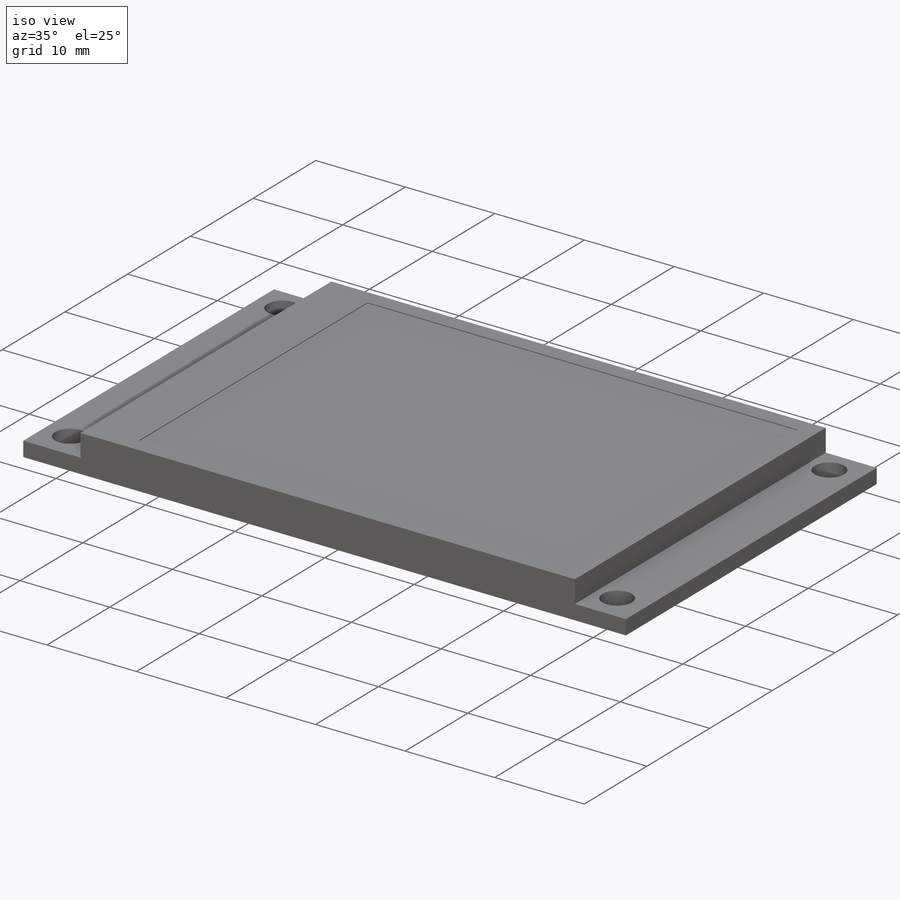
[diagram: iso view]
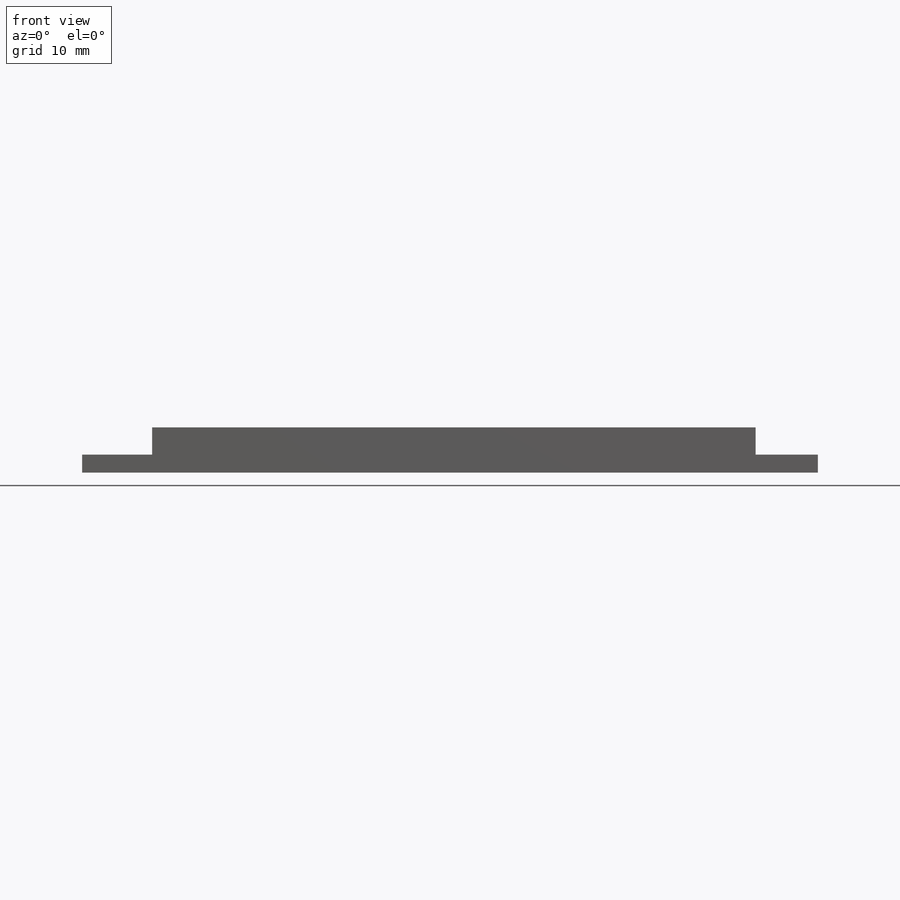
[diagram: front view]
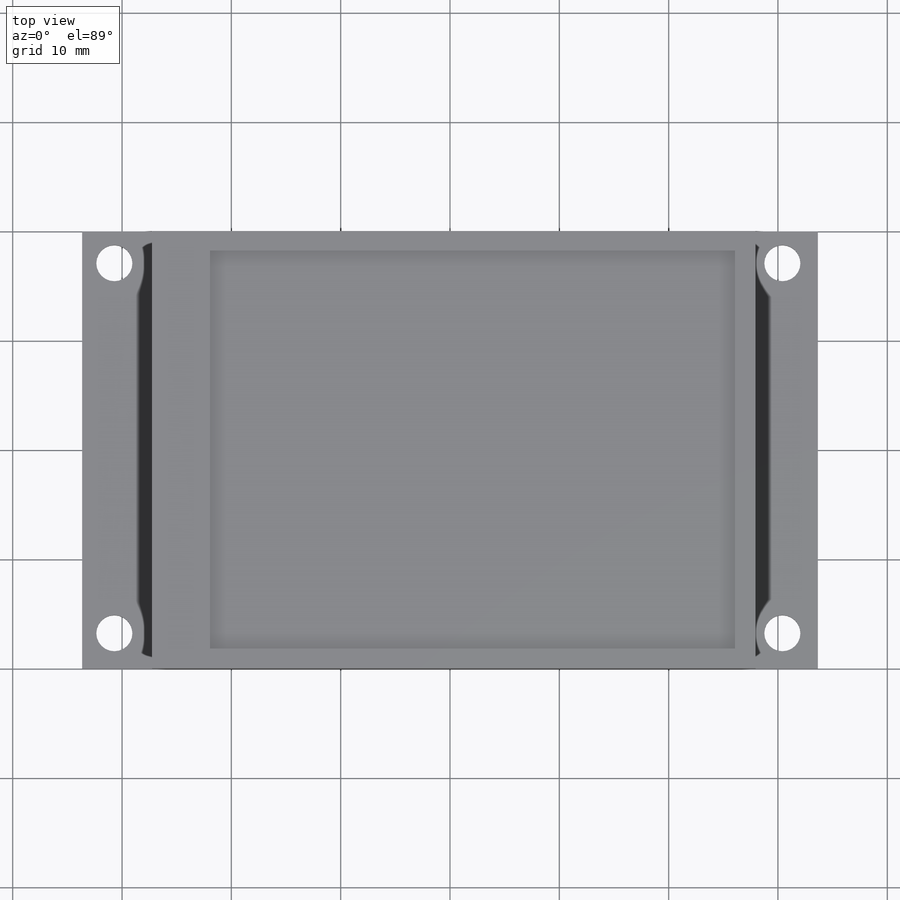
[diagram: top view]
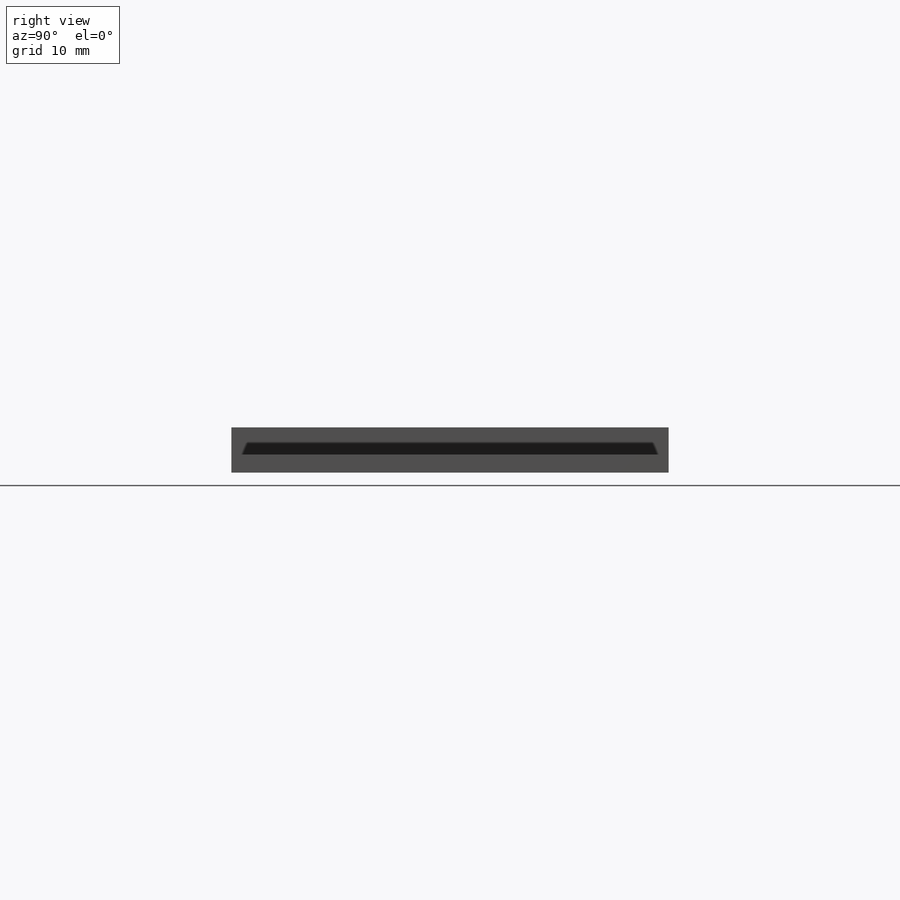
[diagram: right view]
SOLIDWORKS PART (.sldprt)
format: sldprt  version: not decoded by parser v0  size: 152,576 bytes
history: native  units: mm
features: sketch x3, extrude x2, material x1, cut_extrude x1 (+11 scaffold rows collapsed)
feature tree (18):
  scaffold x11  (default folders/planes/origin — collapsed)
  material  "Material <not specified>"
  sketch  "Sketch1"  dims[c1.D3=3.3mm c1.D6=3.3mm c1.D1=40.0mm c1.D2=67.3mm c1.D4=1.3mm c1.D5=1.6mm c2.D6=1.25mm c2.D7=1.6mm]
  extrude  "Boss-Extrude1"  Depth=1.65mm
  sketch  "Sketch2"  dims[D1=6.4mm D2=5.7mm]
  extrude  "Boss-Extrude2"  Depth=2.5mm
  sketch  "Sketch3"  dims[D1=11.7mm D2=1.8mm D3=1.8mm D4=7.6mm]
  cut_extrude  "Cut-Extrude1"  Depth=0.1mm
decode coverage: 6 of 6 modeling features carry decoded parameters
note: suppression state not decoded; provenance and decode notes live in map.json
